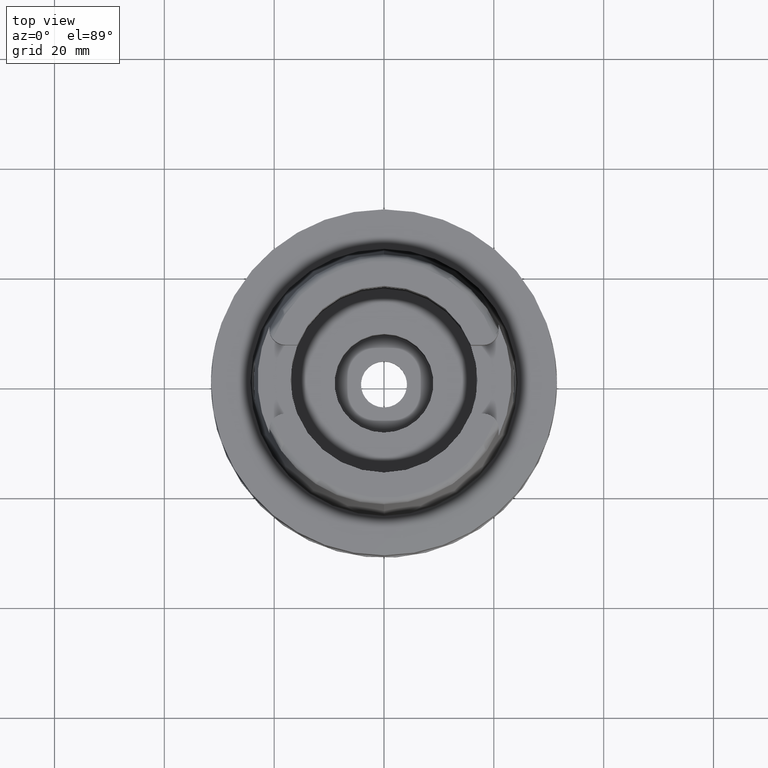
[diagram: clean part render]
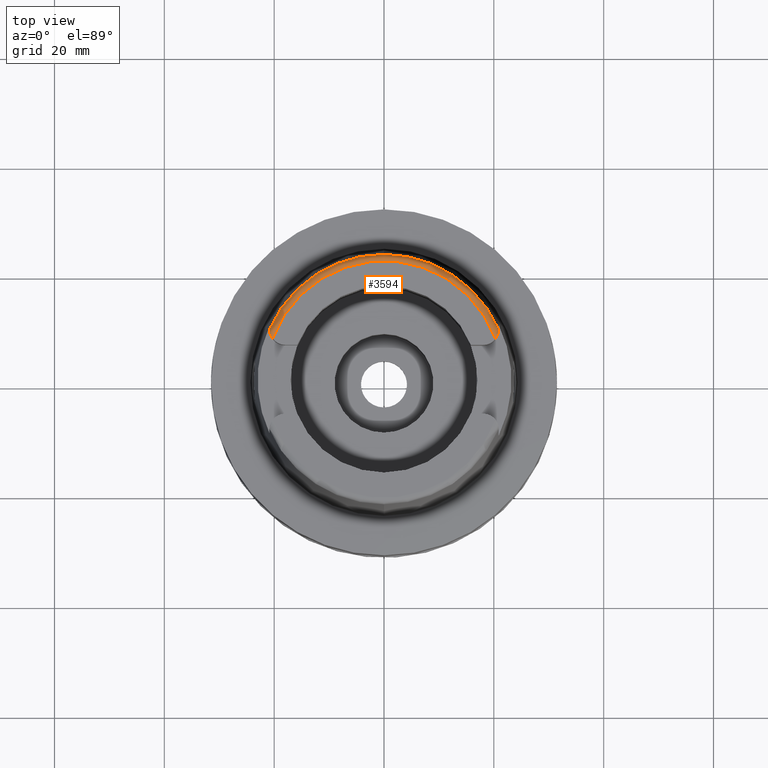
[diagram: same view with one face highlighted and labeled with its STEP entity id]
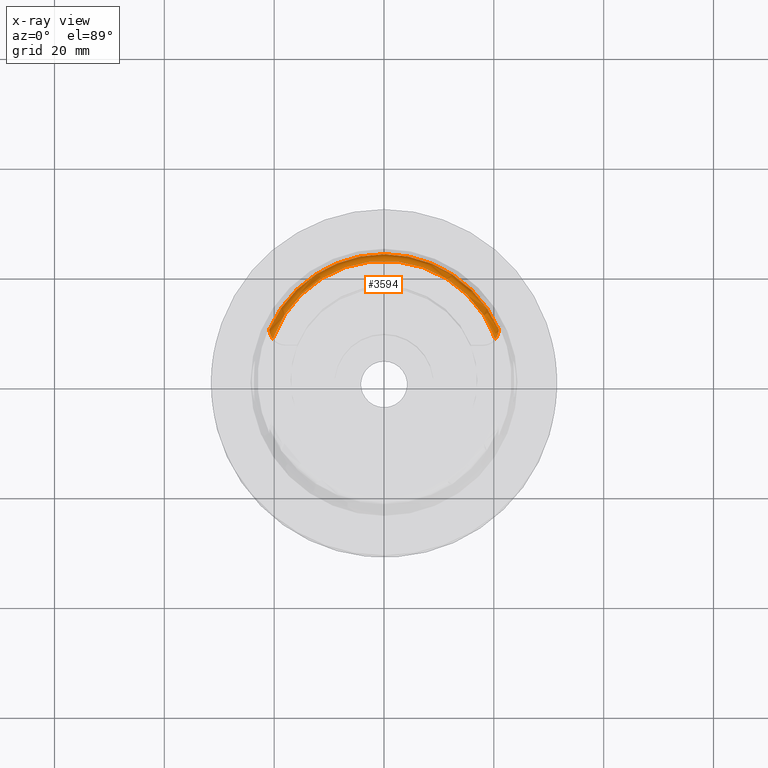
[diagram: x-ray of the same camera — body ghosted, the highlighted face saturated]
A machine part, top view. The second image highlights one B-rep face of the part: STEP entity #3594.
The next image is the same camera in x-ray: the body ghosted, the highlighted face saturated — about 0% of this face is hidden behind the body in this view.
In plain terms, the highlighted toroidal blend (fillet) surface has major radius 21.5735 mm and minor (blend) radius 1.2 mm.
Its self-contained STEP definition (entity closure, byte-faithful):
#78 = CARTESIAN_POINT ( 'NONE',  ( 20.28174256341000259, 7.352969181062000814, 32.00000000000000000 ) ) ;
#146 = CARTESIAN_POINT ( 'NONE',  ( 0.0000000000000000000, 0.0000000000000000000, 30.85992712280000205 ) ) ;
#265 = CIRCLE ( 'NONE', #3271, 21.57348458608998598 ) ;
#268 = ORIENTED_EDGE ( 'NONE', *, *, #4088, .F. ) ;
#324 = CARTESIAN_POINT ( 'NONE',  ( 0.0000000000000000000, 0.0000000000000000000, 32.00000000000000000 ) ) ;
#364 = CARTESIAN_POINT ( 'NONE',  ( -20.61203213931720413, 7.958532675772985066, 31.88080485568600153 ) ) ;
#417 = CARTESIAN_POINT ( 'NONE',  ( -20.73638424707553440, 8.282839154505269974, 31.73206490480248831 ) ) ;
#554 = AXIS2_PLACEMENT_3D ( 'NONE', #5010, #1103, #4598 ) ;
#616 = CARTESIAN_POINT ( 'NONE',  ( 20.78357829582417793, 8.373297703956779969, 31.66715489293361330 ) ) ;
#641 = TOROIDAL_SURFACE ( 'NONE', #3653, 21.57348458609000019, 1.199999999999999956 ) ;
#702 = VERTEX_POINT ( 'NONE', #4934 ) ;
#707 = CARTESIAN_POINT ( 'NONE',  ( 20.68649603729275910, 8.070833160784347982, 31.82186038805259898 ) ) ;
#797 = CARTESIAN_POINT ( 'NONE',  ( -20.77849684652537832, 8.428345306633351797, 31.64869642565708929 ) ) ;
#800 = EDGE_CURVE ( 'NONE', #702, #1557, #2713, .T. ) ;
#957 = DIRECTION ( 'NONE',  ( -0.0006539142454762719193, -0.9999997861980568503, 0.0000000000000000000 ) ) ;
#1020 = CARTESIAN_POINT ( 'NONE',  ( 20.81759638789650424, 8.530259057884558516, 31.56598262296943957 ) ) ;
#1053 = CARTESIAN_POINT ( 'NONE',  ( 20.86504673976029878, 8.902098464297267810, 31.25376144850110194 ) ) ;
#1090 = ORIENTED_EDGE ( 'NONE', *, *, #800, .F. ) ;
#1103 = DIRECTION ( 'NONE',  ( 0.0000000000000000000, 0.0000000000000000000, -1.000000000000000000 ) ) ;
#1134 = CARTESIAN_POINT ( 'NONE',  ( 20.86994457043000040, 9.110917567833000774, 30.85992712280000205 ) ) ;
#1137 = CARTESIAN_POINT ( 'NONE',  ( 20.62346107109410553, 7.921071889737403282, 31.88211059283710469 ) ) ;
#1164 = VERTEX_POINT ( 'NONE', #1524 ) ;
#1251 = CARTESIAN_POINT ( 'NONE',  ( -20.66022889324120371, 8.069427824699399565, 31.83636649372008876 ) ) ;
#1300 = CARTESIAN_POINT ( 'NONE',  ( -20.72365961036444304, 8.242873281236684946, 31.75346851328730224 ) ) ;
#1301 = ORIENTED_EDGE ( 'NONE', *, *, #2728, .T. ) ;
#1320 = DIRECTION ( 'NONE',  ( 0.0000000000000000000, 0.0000000000000000000, 1.000000000000000000 ) ) ;
#1324 = CARTESIAN_POINT ( 'NONE',  ( -20.26871835884000106, 7.388795116669998997, 32.00000000000000000 ) ) ;
#1424 = DIRECTION ( 'NONE',  ( 0.0006539142454758719572, 0.9999997861980568503, 0.0000000000000000000 ) ) ;
#1468 = CARTESIAN_POINT ( 'NONE',  ( 20.86978756645669364, 9.019988501503254597, 31.10375463837201337 ) ) ;
#1524 = CARTESIAN_POINT ( 'NONE',  ( 20.86994457043000040, 9.110917567833000774, 30.85992712280000205 ) ) ;
#1529 = CARTESIAN_POINT ( 'NONE',  ( 20.63828060481870708, 7.954609777474075827, 31.86932872860293742 ) ) ;
#1557 = VERTEX_POINT ( 'NONE', #2475 ) ;
#1649 = CARTESIAN_POINT ( 'NONE',  ( -20.74465082314197062, 8.309468497254842489, 31.71753313942148012 ) ) ;
#1733 = CARTESIAN_POINT ( 'NONE',  ( -20.86956678688924072, 9.098384947222012187, 30.96713712417717446 ) ) ;
#1760 = CIRCLE ( 'NONE', #4945, 22.77198729362000051 ) ;
#1899 = CARTESIAN_POINT ( 'NONE',  ( 0.0000000000000000000, 22.77198729362000051, 30.85992712280000205 ) ) ;
#1910 = CARTESIAN_POINT ( 'NONE',  ( 20.85742615498566366, 8.799600041250240423, 31.35766549473822806 ) ) ;
#1968 = VERTEX_POINT ( 'NONE', #78 ) ;
#1974 = CARTESIAN_POINT ( 'NONE',  ( 20.62807864001841196, 7.931406883440857314, 31.87822256857425529 ) ) ;
#2104 = CARTESIAN_POINT ( 'NONE',  ( -20.85340400135039474, 8.839754352102607626, 31.33228694805900716 ) ) ;
#2159 = CARTESIAN_POINT ( 'NONE',  ( -20.80221789628445350, 8.528155665787146233, 31.58387401068289080 ) ) ;
#2193 = EDGE_CURVE ( 'NONE', #1164, #5399, #3630, .T. ) ;
#2329 = CARTESIAN_POINT ( 'NONE',  ( 20.40914085461392347, 7.517073529129008946, 32.00000000000000000 ) ) ;
#2354 = CARTESIAN_POINT ( 'NONE',  ( 20.87000000000000099, 9.070000000000000284, 31.00584217417999966 ) ) ;
#2433 = CARTESIAN_POINT ( 'NONE',  ( 20.86364601278465614, 8.879586943593897885, 31.27790434830482624 ) ) ;
#2448 = DIRECTION ( 'NONE',  ( 0.0000000000000000000, 0.0000000000000000000, -1.000000000000000000 ) ) ;
#2475 = CARTESIAN_POINT ( 'NONE',  ( -20.86974110883999955, 9.111383541020998678, 30.85992743411999939 ) ) ;
#2516 = CARTESIAN_POINT ( 'NONE',  ( -20.81575066172955246, 8.593557387709759965, 31.53785276716041608 ) ) ;
#2524 = CARTESIAN_POINT ( 'NONE',  ( 20.87000000000000099, 9.070000000000000284, 31.00584217417999966 ) ) ;
#2573 = CARTESIAN_POINT ( 'NONE',  ( -20.52989642893214750, 7.790894747049183167, 31.93790764575270913 ) ) ;
#2600 = CARTESIAN_POINT ( 'NONE',  ( -20.79465848110331194, 8.495159680333987495, 31.60575965851280245 ) ) ;
#2624 = CARTESIAN_POINT ( 'NONE',  ( -20.62487738392950121, 7.987215369911567109, 31.86971693528471050 ) ) ;
#2683 = FACE_OUTER_BOUND ( 'NONE', #5346, .T. ) ;
#2713 = B_SPLINE_CURVE_WITH_KNOTS ( 'NONE', 3,
 ( #1324, #2997, #4759, #3378, #2573, #5550, #2949, #364, #2624, #3058, #1251, #4342, #1300, #417, #1649, #5131, #4711, #797, #2600, #2159, #5581, #4367, #2516, #5162, #4281, #2104, #3846, #3409, #3906, #5631, #1733, #3458 ),
 .UNSPECIFIED., .F., .F.,
 ( 4, 2, 2, 1, 2, 2, 1, 1, 2, 2, 2, 1, 2, 2, 2, 2, 2, 4 ),
 ( 0.0000000000000000000, 0.1249999999999892308, 0.1874999999999831801, 0.2187499999999794331, 0.2343749999999793221, 0.2499999999999791833, 0.3124999999999859557, 0.3437499999999885647, 0.3593749999999878431, 0.3749999999999871214, 0.4374999999999946709, 0.4687499999999988343, 0.4843749999999990563, 0.4999999999999992228, 0.6250000000000022204, 0.6875000000000036637, 0.7500000000000052180, 1.000000000000000000 ),
 .UNSPECIFIED. ) ;
#2728 = EDGE_CURVE ( 'NONE', #702, #1968, #265, .T. ) ;
#2804 = CARTESIAN_POINT ( 'NONE',  ( 20.80803236534136857, 8.484165886935258527, 31.59630678863958764 ) ) ;
#2909 = CARTESIAN_POINT ( 'NONE',  ( 20.87000000000000099, 9.070000000000000284, 31.00584217417999966 ) ) ;
#2933 = DIRECTION ( 'NONE',  ( -0.9395199128801114963, 0.3424942821446042007, 0.0000000000000000000 ) ) ;
#2949 = CARTESIAN_POINT ( 'NONE',  ( -20.59245710130440088, 7.915766686702832899, 31.89688234026789715 ) ) ;
#2997 = CARTESIAN_POINT ( 'NONE',  ( -20.34021363689810258, 7.481298609144575451, 31.99999999999999289 ) ) ;
#3058 = CARTESIAN_POINT ( 'NONE',  ( -20.63170897108233603, 8.002836706207867579, 31.86350165014913927 ) ) ;
#3069 = ORIENTED_EDGE ( 'NONE', *, *, #4741, .F. ) ;
#3184 = CARTESIAN_POINT ( 'NONE',  ( 20.86811499134500281, 8.965690906306447161, 31.17841694410600084 ) ) ;
#3271 = AXIS2_PLACEMENT_3D ( 'NONE', #324, #2448, #2933 ) ;
#3322 = CARTESIAN_POINT ( 'NONE',  ( 20.87000000000000099, 9.091125264147335017, 30.95748277891474487 ) ) ;
#3378 = CARTESIAN_POINT ( 'NONE',  ( -20.50032059477025115, 7.737064248742957062, 31.95269153962111019 ) ) ;
#3390 = CIRCLE ( 'NONE', #554, 22.77198729362000407 ) ;
#3409 = CARTESIAN_POINT ( 'NONE',  ( -20.86096751393063187, 8.920566192295531494, 31.24541969566411126 ) ) ;
#3458 = CARTESIAN_POINT ( 'NONE',  ( -20.86974110883999955, 9.111383541020998678, 30.85992743411999939 ) ) ;
#3594 = ADVANCED_FACE ( 'NONE', ( #2683 ), #641, .T. ) ;
#3618 = CARTESIAN_POINT ( 'NONE',  ( 20.28174256341000259, 7.352969181062000814, 32.00000000000000000 ) ) ;
#3630 = B_SPLINE_CURVE_WITH_KNOTS ( 'NONE', 3,
 ( #1134, #5035, #3322, #2909 ),
 .UNSPECIFIED., .F., .F.,
 ( 4, 4 ),
 ( 0.0000000000000000000, 1.000000000000000000 ),
 .UNSPECIFIED. ) ;
#3653 = AXIS2_PLACEMENT_3D ( 'NONE', #4387, #1320, #957 ) ;
#3707 = CARTESIAN_POINT ( 'NONE',  ( 20.83213330873963187, 8.609685152129534558, 31.51054846104809570 ) ) ;
#3717 = ORIENTED_EDGE ( 'NONE', *, *, #2193, .F. ) ;
#3731 = CARTESIAN_POINT ( 'NONE',  ( 20.82267498889038393, 8.557069255023625587, 31.54758360859752386 ) ) ;
#3764 = ORIENTED_EDGE ( 'NONE', *, *, #4640, .F. ) ;
#3846 = CARTESIAN_POINT ( 'NONE',  ( -20.85628887118052077, 8.868073688511382002, 31.30344716733874577 ) ) ;
#3847 = VERTEX_POINT ( 'NONE', #1899 ) ;
#3906 = CARTESIAN_POINT ( 'NONE',  ( -20.86284155171701116, 8.945998185473422737, 31.21455842354375676 ) ) ;
#3928 = B_SPLINE_CURVE_WITH_KNOTS ( 'NONE', 3,
 ( #2354, #5444, #1468, #3184, #4625, #1053, #2433, #1910, #4927, #4113, #3707, #3731, #1020, #4514, #2804, #4199, #5383, #616, #4145, #5415, #707, #4567, #1529, #1974, #1137, #5466, #2329, #3618 ),
 .UNSPECIFIED., .F., .F.,
 ( 4, 2, 2, 2, 2, 2, 1, 1, 2, 2, 2, 1, 1, 2, 2, 4 ),
 ( 0.0000000000000000000, 0.1250000000000082157, 0.1875000000000142109, 0.2500000000000250910, 0.3750000000000408007, 0.4375000000000454081, 0.4687500000000449085, 0.4843750000000415779, 0.4921875000000404676, 0.5000000000000394129, 0.6250000000000308642, 0.6875000000000243139, 0.7187500000000196509, 0.7343750000000174305, 0.7500000000000150990, 1.000000000000000000 ),
 .UNSPECIFIED. ) ;
#4088 = EDGE_CURVE ( 'NONE', #3847, #1164, #1760, .T. ) ;
#4113 = CARTESIAN_POINT ( 'NONE',  ( 20.83750772302468945, 8.643422235726301750, 31.48554220427433137 ) ) ;
#4145 = CARTESIAN_POINT ( 'NONE',  ( 20.75814051762877810, 8.280364376144701666, 31.71975763224103773 ) ) ;
#4199 = CARTESIAN_POINT ( 'NONE',  ( 20.80601650561327176, 8.474822276375414631, 31.60234099392788565 ) ) ;
#4281 = CARTESIAN_POINT ( 'NONE',  ( -20.84255601257618551, 8.748672773076300757, 31.41828442486856332 ) ) ;
#4342 = CARTESIAN_POINT ( 'NONE',  ( -20.69167071279176184, 8.149507091055363972, 31.80065198931144366 ) ) ;
#4367 = CARTESIAN_POINT ( 'NONE',  ( -20.81344090248211387, 8.581932187922173938, 31.54621568223592476 ) ) ;
#4387 = CARTESIAN_POINT ( 'NONE',  ( 0.0000000000000000000, 0.0000000000000000000, 30.80000000000000071 ) ) ;
#4461 = DIRECTION ( 'NONE',  ( 0.0000000000000000000, 0.0000000000000000000, -1.000000000000000000 ) ) ;
#4514 = CARTESIAN_POINT ( 'NONE',  ( 20.81100561172913288, 8.498121103346074179, 31.58724066078178438 ) ) ;
#4567 = CARTESIAN_POINT ( 'NONE',  ( 20.65331183908556412, 7.989437461115356243, 31.85569772922395515 ) ) ;
#4598 = DIRECTION ( 'NONE',  ( -0.9164655183265837390, 0.4001136759951928745, 0.0000000000000000000 ) ) ;
#4625 = CARTESIAN_POINT ( 'NONE',  ( 20.86732620578409936, 8.945728919013461677, 31.20344081908288913 ) ) ;
#4640 = EDGE_CURVE ( 'NONE', #5399, #1968, #3928, .T. ) ;
#4711 = CARTESIAN_POINT ( 'NONE',  ( -20.76633223976569909, 8.382704468531112951, 31.67620823239915140 ) ) ;
#4741 = EDGE_CURVE ( 'NONE', #1557, #3847, #3390, .T. ) ;
#4759 = CARTESIAN_POINT ( 'NONE',  ( -20.40751591907737605, 7.580030419454153900, 31.98817288490528199 ) ) ;
#4927 = CARTESIAN_POINT ( 'NONE',  ( 20.85130881851913642, 8.740467604135833568, 31.40957495873060523 ) ) ;
#4934 = CARTESIAN_POINT ( 'NONE',  ( -20.26871835884000106, 7.388795116669998997, 32.00000000000000000 ) ) ;
#4945 = AXIS2_PLACEMENT_3D ( 'NONE', #146, #4461, #1424 ) ;
#5010 = CARTESIAN_POINT ( 'NONE',  ( 0.0000000000000000000, 0.0000000000000000000, 30.85992712280000205 ) ) ;
#5035 = CARTESIAN_POINT ( 'NONE',  ( 20.87000000000000099, 9.104744530404001779, 30.90884546144141254 ) ) ;
#5131 = CARTESIAN_POINT ( 'NONE',  ( -20.74915920827202243, 8.324416473308941633, 31.70920710996739800 ) ) ;
#5162 = CARTESIAN_POINT ( 'NONE',  ( -20.83242348246966813, 8.679765525829221673, 31.47492025560673312 ) ) ;
#5346 = EDGE_LOOP ( 'NONE', ( #1301, #3764, #3717, #268, #3069, #1090 ) ) ;
#5383 = CARTESIAN_POINT ( 'NONE',  ( 20.80522298504748591, 8.471176158956097879, 31.60468572218815808 ) ) ;
#5399 = VERTEX_POINT ( 'NONE', #2524 ) ;
#5415 = CARTESIAN_POINT ( 'NONE',  ( 20.71174907842885915, 8.140716527713404815, 31.78937407969924323 ) ) ;
#5444 = CARTESIAN_POINT ( 'NONE',  ( 20.87000000000000810, 9.048733218676105139, 31.05452552681157385 ) ) ;
#5466 = CARTESIAN_POINT ( 'NONE',  ( 20.52389663253482510, 7.702740764206644108, 31.96227538970786952 ) ) ;
#5550 = CARTESIAN_POINT ( 'NONE',  ( -20.57198308885686799, 7.873785453604152273, 31.91129663678959361 ) ) ;
#5581 = CARTESIAN_POINT ( 'NONE',  ( -20.80904589313270137, 8.560508845410259582, 31.56136246646625665 ) ) ;
#5631 = CARTESIAN_POINT ( 'NONE',  ( -20.86947684258603886, 9.050108765937933342, 31.07611809901661104 ) ) ;